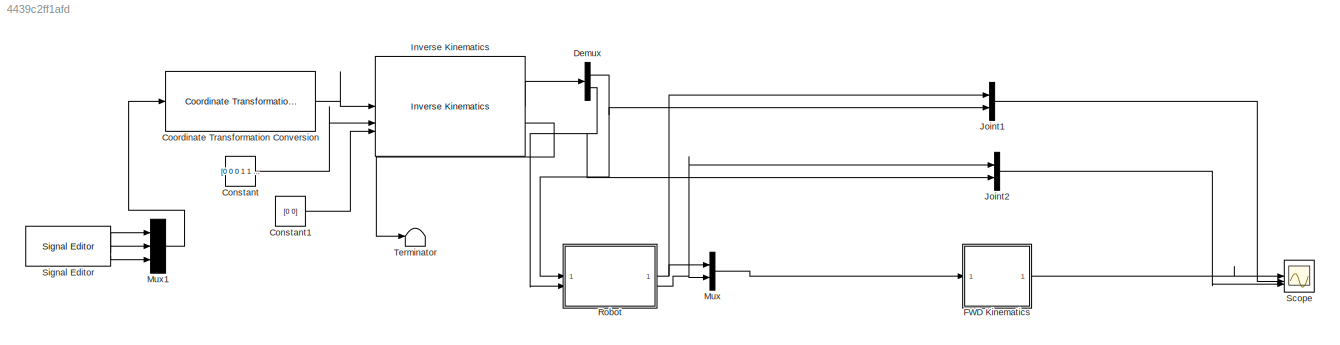
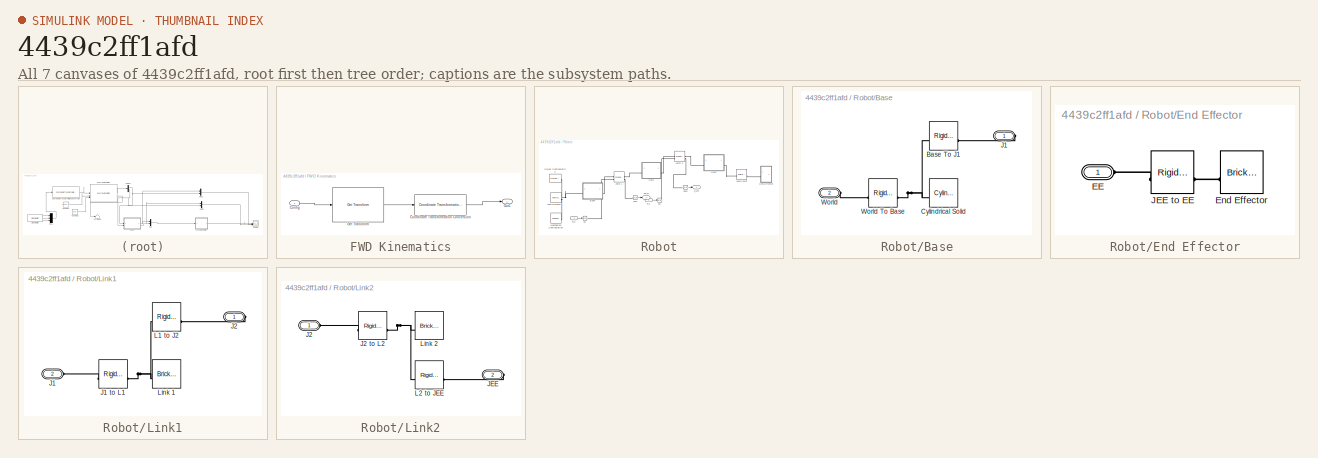
[diagram: thumbnail index - all 7 canvases of the model, root first then tree order]
MODEL slx_4439c2ff1afd
KIND model
CONFIG AbsTol = auto
CONFIG EnableMultiTasking = off
CONFIG FixedStep = auto
CONFIG MaxStep = auto
CONFIG MinStep = auto
CONFIG RelTol = 1e-3
CONFIG SampleTimeConstraint = Unconstrained
CONFIG SolverName = VariableStepAuto
CONFIG StartTime = 0.0
CONFIG StopTime = 5
BLOCK [Constant] Constant
  Value = [0 0 0 1 1 1]
BLOCK [Constant] Constant1
  Value = [0 0]
BLOCK [Reference] Coordinate Transformation Conversion  REF=robotcorelib/Coordinate Transformation Conversion
  LibrarySourceBlock = robotutilslib/Coordinate Transformation Conversion
  SourceBlock = robotcorelib/Coordinate Transformation Conversion
  SourceType = robotics.slcore.internal.block.CoordinateTransformationConversion
BLOCK [Demux] Demux
  Outputs = 2
BLOCK [SubSystem] FWD Kinematics
BLOCK [Inport] FWD Kinematics/Config
BLOCK [Reference] FWD Kinematics/Coordinate Transformation Conversion  REF=robotcorelib/Coordinate Transformation Conversion
  LibrarySourceBlock = robotutilslib/Coordinate Transformation Conversion
  SourceBlock = robotcorelib/Coordinate Transformation Conversion
  SourceType = robotics.slcore.internal.block.CoordinateTransformationConversion
BLOCK [Reference] FWD Kinematics/Get Transform  REF=robotmaniplib/Get Transform
  SourceBlock = robotmaniplib/Get Transform
  SourceType = Get Transform
BLOCK [Outport] FWD Kinematics/Out1
BLOCK [Reference] Inverse Kinematics  REF=robotmaniplib/Inverse Kinematics
  SourceBlock = robotmaniplib/Inverse Kinematics
  SourceType = Inverse Kinematics
BLOCK [Mux] Joint1
  DisplayOption = bar
  Inputs = 2
BLOCK [Mux] Joint2
  DisplayOption = bar
  Inputs = 2
BLOCK [Mux] Mux
  DisplayOption = bar
  Inputs = 2
BLOCK [Mux] Mux1
  DisplayOption = bar
  Inputs = 3
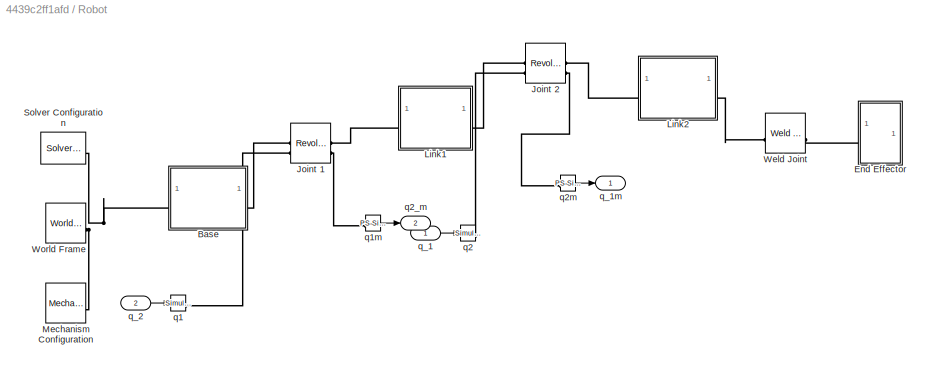
BLOCK [SubSystem] Robot
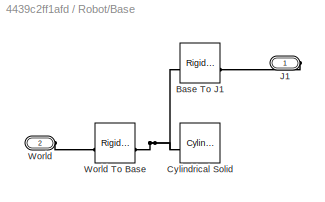
BLOCK [SubSystem] Robot/Base
BLOCK [Reference] Robot/Base/Base To J1  REF=sm_lib/Frames and
Transforms/Rigid
Transform
  SourceBlock = sm_lib/Frames and\nTransforms/Rigid\nTransform
  SourceType = Rigid\nTransform
BLOCK [Reference] Robot/Base/Cylindrical Solid  REF=sm_lib/Body Elements/Cylindrical Solid
  SourceBlock = sm_lib/Body Elements/Cylindrical Solid
  SourceType = Cylindrical Solid
BLOCK [PMIOPort] Robot/Base/J1
  Side = Right
BLOCK [PMIOPort] Robot/Base/World
  Port = 2
  Side = Left
BLOCK [Reference] Robot/Base/World To Base  REF=sm_lib/Frames and
Transforms/Rigid
Transform
  SourceBlock = sm_lib/Frames and\nTransforms/Rigid\nTransform
  SourceType = Rigid\nTransform
BLOCK [SubSystem] Robot/End Effector
BLOCK [PMIOPort] Robot/End Effector/EE
  Side = Left
BLOCK [Reference] Robot/End Effector/End Effector  REF=sm_lib/Body Elements/Brick Solid
  SourceBlock = sm_lib/Body Elements/Brick Solid
  SourceType = Brick Solid
BLOCK [Reference] Robot/End Effector/JEE to EE  REF=sm_lib/Frames and
Transforms/Rigid
Transform
  SourceBlock = sm_lib/Frames and\nTransforms/Rigid\nTransform
  SourceType = Rigid\nTransform
BLOCK [Reference] Robot/Joint 1  REF=sm_lib/Joints/Revolute Joint
  SourceBlock = sm_lib/Joints/Revolute Joint
  SourceType = Revolute Joint
BLOCK [Reference] Robot/Joint 2  REF=sm_lib/Joints/Revolute Joint
  SourceBlock = sm_lib/Joints/Revolute Joint
  SourceType = Revolute Joint
BLOCK [SubSystem] Robot/Link1
BLOCK [PMIOPort] Robot/Link1/J1
  Port = 2
  Side = Left
BLOCK [Reference] Robot/Link1/J1 to L1  REF=sm_lib/Frames and
Transforms/Rigid
Transform
  SourceBlock = sm_lib/Frames and\nTransforms/Rigid\nTransform
  SourceType = Rigid\nTransform
BLOCK [PMIOPort] Robot/Link1/J2
  Side = Right
BLOCK [Reference] Robot/Link1/L1 to J2  REF=sm_lib/Frames and
Transforms/Rigid
Transform
  SourceBlock = sm_lib/Frames and\nTransforms/Rigid\nTransform
  SourceType = Rigid\nTransform
BLOCK [Reference] Robot/Link1/Link 1  REF=sm_lib/Body Elements/Brick Solid
  SourceBlock = sm_lib/Body Elements/Brick Solid
  SourceType = Brick Solid
BLOCK [SubSystem] Robot/Link2
BLOCK [PMIOPort] Robot/Link2/J2
  Side = Left
BLOCK [Reference] Robot/Link2/J2 to L2  REF=sm_lib/Frames and
Transforms/Rigid
Transform
  SourceBlock = sm_lib/Frames and\nTransforms/Rigid\nTransform
  SourceType = Rigid\nTransform
BLOCK [PMIOPort] Robot/Link2/JEE
  Port = 2
  Side = Right
BLOCK [Reference] Robot/Link2/L2 to JEE  REF=sm_lib/Frames and
Transforms/Rigid
Transform
  SourceBlock = sm_lib/Frames and\nTransforms/Rigid\nTransform
  SourceType = Rigid\nTransform
BLOCK [Reference] Robot/Link2/Link 2  REF=sm_lib/Body Elements/Brick Solid
  SourceBlock = sm_lib/Body Elements/Brick Solid
  SourceType = Brick Solid
BLOCK [Reference] Robot/Mechanism Configuration  REF=sm_lib/Utilities/Mechanism
Configuration
  SourceBlock = sm_lib/Utilities/Mechanism\nConfiguration
  SourceType = Mechanism\nConfiguration
BLOCK [Reference] Robot/Solver Configuration  REF=nesl_utility/Solver
Configuration
  SourceBlock = nesl_utility/Solver\nConfiguration
  SourceType = Solver\nConfiguration
BLOCK [Reference] Robot/Weld Joint  REF=sm_lib/Joints/Weld Joint
  SourceBlock = sm_lib/Joints/Weld Joint
  SourceType = Weld Joint
BLOCK [Reference] Robot/World Frame  REF=sm_lib/Frames and
Transforms/World Frame
  SourceBlock = sm_lib/Frames and\nTransforms/World Frame
  SourceType = World Frame
BLOCK [Reference] Robot/q1  REF=nesl_utility/Simulink-PS
Converter
  SourceBlock = nesl_utility/Simulink-PS\nConverter
  SourceType = Simulink-PS\nConverter
BLOCK [Reference] Robot/q1m  REF=nesl_utility/PS-Simulink
Converter
  SourceBlock = nesl_utility/PS-Simulink\nConverter
  SourceType = PS-Simulink\nConverter
BLOCK [Reference] Robot/q2  REF=nesl_utility/Simulink-PS
Converter
  SourceBlock = nesl_utility/Simulink-PS\nConverter
  SourceType = Simulink-PS\nConverter
BLOCK [Outport] Robot/q2_m
  Port = 2
BLOCK [Reference] Robot/q2m  REF=nesl_utility/PS-Simulink
Converter
  SourceBlock = nesl_utility/PS-Simulink\nConverter
  SourceType = PS-Simulink\nConverter
BLOCK [Inport] Robot/q_1
BLOCK [Outport] Robot/q_1m
BLOCK [Inport] Robot/q_2
  Port = 2
BLOCK [Scope] Scope
  Floating = off
  NumInputPorts = 3
  ScopeSpecificationString = Simulink.scopes.TimeScopeBlockCfg('CurrentConfiguration', extmgr.ConfigurationSet(extmgr.Configuration('Core','General UI',true),extmgr.Configuration('Core','Source UI',true),extmgr.Configuration('Sources','WiredSimulink',true),extmgr.Configuration('Visuals','Time Domain',true,'SerializedDisplays',{struct('MinYLimReal','-0.04375','MaxYLimReal','0.39375','YLabelReal','','MinYLimMag','0.00000','MaxY...<+2768ch>
BLOCK [Reference] Signal Editor  REF=SignalEditorBlockLib/Signal Editor
  LibrarySourceBlock = simulink/Sources/Signal Editor
  SourceBlock = SignalEditorBlockLib/Signal Editor
  SourceType = SignalEditor
  UserDataPersistent = on
BLOCK [Terminator] Terminator
LINE Constant1:1 -> Inverse Kinematics:3
LINE Constant:1 -> Inverse Kinematics:2
LINE Coordinate Transformation Conversion:1 -> Inverse Kinematics:1
NET Demux:1 -> Joint1:2, Robot:1
NET Demux:2 -> Joint2:2, Robot:2
LINE FWD Kinematics/Config:1 -> FWD Kinematics/Get Transform:1
LINE FWD Kinematics/Coordinate Transformation Conversion:1 -> FWD Kinematics/Out1:1
LINE FWD Kinematics/Get Transform:1 -> FWD Kinematics/Coordinate Transformation Conversion:1
LINE FWD Kinematics:1 -> Scope:1
LINE Inverse Kinematics:1 -> Demux:1
LINE Inverse Kinematics:2 -> Terminator:1
LINE Joint1:1 -> Scope:2
LINE Joint2:1 -> Scope:3
LINE Mux1:1 -> Coordinate Transformation Conversion:1
LINE Mux:1 -> FWD Kinematics:1
LINE Robot/q1m:1 -> Robot/q2_m:1
LINE Robot/q2m:1 -> Robot/q_1m:1
LINE Robot/q_1:1 -> Robot/q2:1
LINE Robot/q_2:1 -> Robot/q1:1
NET Robot:1 -> Joint1:1, Mux:1
NET Robot:2 -> Joint2:1, Mux:2
LINE Signal Editor:1 -> Mux1:1
LINE Signal Editor:2 -> Mux1:2
LINE Signal Editor:3 -> Mux1:3
PNET net1: Robot/Base/Base To J1:LConn1 -- Robot/Base/Cylindrical Solid:RConn1 -- Robot/Base/World To Base:RConn1
PLINE Robot/Base/Base To J1:RConn1 -- Robot/Base/J1:RConn1
PLINE Robot/Base/World To Base:LConn1 -- Robot/Base/World:RConn1
PNET net2: Robot/Base:LConn1 -- Robot/Mechanism Configuration:RConn1 -- Robot/Solver Configuration:RConn1 -- Robot/World Frame:RConn1
PLINE Robot/Base:RConn1 -- Robot/Joint 1:LConn1
PLINE Robot/End Effector/EE:RConn1 -- Robot/End Effector/JEE to EE:LConn1
PLINE Robot/End Effector/End Effector:RConn1 -- Robot/End Effector/JEE to EE:RConn1
PLINE Robot/End Effector:LConn1 -- Robot/Weld Joint:RConn1
PLINE Robot/Joint 1:LConn2 -- Robot/q1:RConn1
PLINE Robot/Joint 1:RConn1 -- Robot/Link1:LConn1
PLINE Robot/Joint 1:RConn2 -- Robot/q1m:LConn1
PLINE Robot/Joint 2:LConn1 -- Robot/Link1:RConn1
PLINE Robot/Joint 2:LConn2 -- Robot/q2:RConn1
PLINE Robot/Joint 2:RConn1 -- Robot/Link2:LConn1
PLINE Robot/Joint 2:RConn2 -- Robot/q2m:LConn1
PLINE Robot/Link1/J1 to L1:LConn1 -- Robot/Link1/J1:RConn1
PNET net3: Robot/Link1/J1 to L1:RConn1 -- Robot/Link1/L1 to J2:LConn1 -- Robot/Link1/Link 1:RConn1
PLINE Robot/Link1/J2:RConn1 -- Robot/Link1/L1 to J2:RConn1
PLINE Robot/Link2/J2 to L2:LConn1 -- Robot/Link2/J2:RConn1
PNET net4: Robot/Link2/J2 to L2:RConn1 -- Robot/Link2/L2 to JEE:LConn1 -- Robot/Link2/Link 2:RConn1
PLINE Robot/Link2/JEE:RConn1 -- Robot/Link2/L2 to JEE:RConn1
PLINE Robot/Link2:RConn1 -- Robot/Weld Joint:LConn1
note: NET lines group one-source signal fan-out (src -> all destinations, sorted); 1:1 wires keep LINE; PNET lines group multi-terminal physical nets as a canonical sorted terminal list (undirected conserving connections); 2-terminal nets keep the pairwise PLINE form
